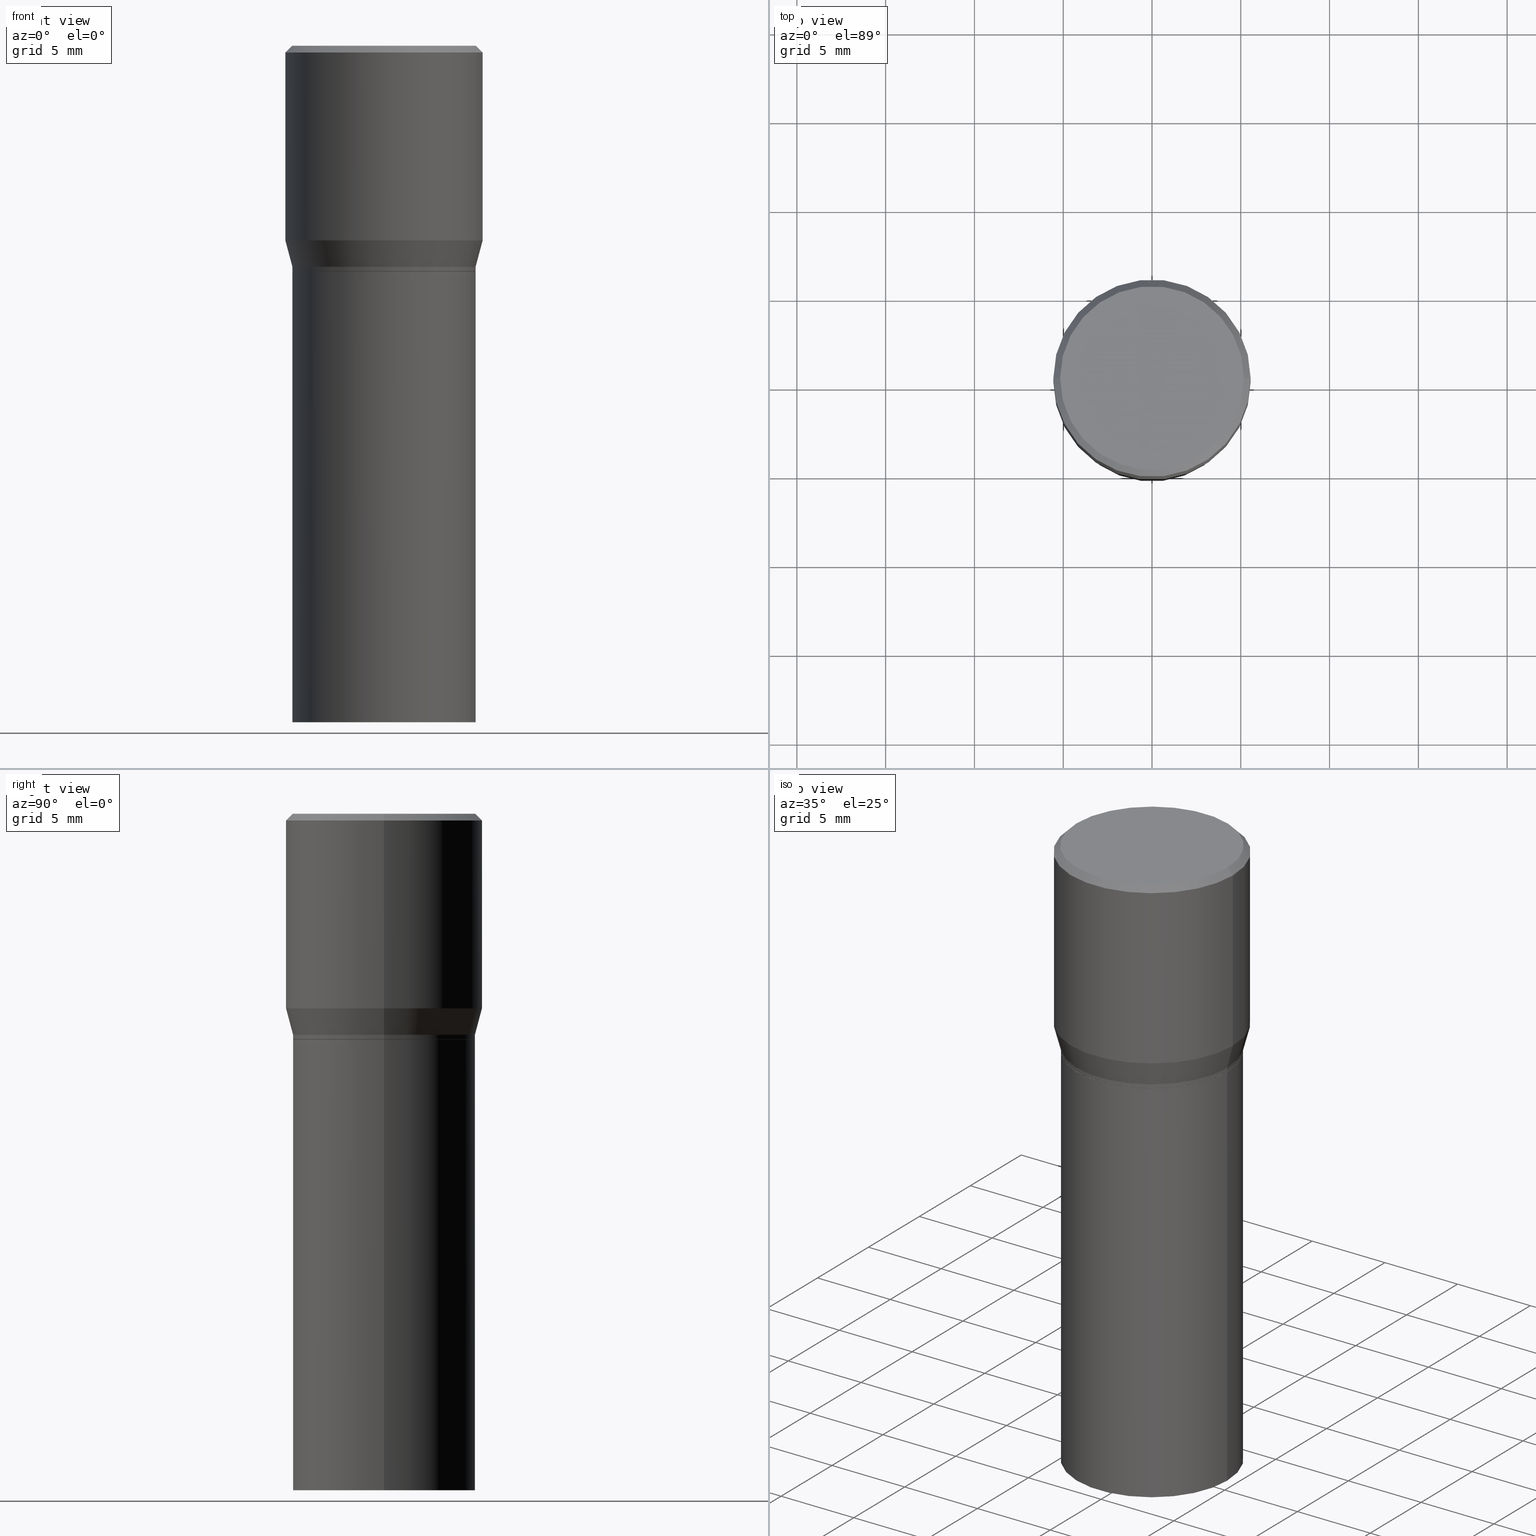
[diagram: canonical four-view strip — front | top / right | iso, engineering-drawing reading convention]
A machine part, canonical four-view strip (front | top / right | iso — engineering-drawing reading convention). The complete STEP part file that produces these views, byte-faithful:
ISO-10303-21;
HEADER;
FILE_DESCRIPTION (( 'STEP AP203' ),
    '1' );
FILE_NAME ('30796.STEP',
    '2024-03-13T16:20:47',
    ( '' ),
    ( '' ),
    'SwSTEP 2.0',
    'SolidWorks 2023',
    '' );
FILE_SCHEMA (( 'CONFIG_CONTROL_DESIGN' ));
ENDSEC;

DATA;
#1 = LINE ( 'NONE', #244, #153 ) ;
#2 = APPROVAL_DATE_TIME ( #459, #432 ) ;
#3 = EDGE_CURVE ( 'NONE', #121, #364, #36, .T. ) ;
#4 = ORIENTED_EDGE ( 'NONE', *, *, #326, .T. ) ;
#5 = DIRECTION ( 'NONE',  ( 1.000000000000000000, -6.982962677686266711E-15, 0.000000000000000000 ) ) ;
#6 = CIRCLE ( 'NONE', #98, 0.2037499999999999867 ) ;
#7 = ORIENTED_EDGE ( 'NONE', *, *, #449, .F. ) ;
#8 = SHAPE_DEFINITION_REPRESENTATION ( #379, #350 ) ;
#9 = DIRECTION ( 'NONE',  ( 1.000000000000000000, -6.982962677686266711E-15, 4.875065411617369217E-29 ) ) ;
#10 = EDGE_LOOP ( 'NONE', ( #460, #282, #119, #116 ) ) ;
#11 = PERSON_AND_ORGANIZATION_ROLE ( 'classification_officer' ) ;
#12 = LINE ( 'NONE', #150, #101 ) ;
#13 = ORIENTED_EDGE ( 'NONE', *, *, #173, .F. ) ;
#14 = DIRECTION ( 'NONE',  ( 1.000000000000000000, -6.982962677686266711E-15, 4.876176775795935232E-29 ) ) ;
#15 = CIRCLE ( 'NONE', #332, 0.2031000000000000028 ) ;
#16 = EDGE_CURVE ( 'NONE', #318, #358, #466, .T. ) ;
#17 = ORIENTED_EDGE ( 'NONE', *, *, #423, .F. ) ;
#18 = CIRCLE ( 'NONE', #320, 0.2026000000000000023 ) ;
#19 = CYLINDRICAL_SURFACE ( 'NONE', #278, 0.2031000000000000028 ) ;
#20 = ORIENTED_EDGE ( 'NONE', *, *, #132, .F. ) ;
#21 = UNCERTAINTY_MEASURE_WITH_UNIT (LENGTH_MEASURE( 1.000000000000000082E-05 ), #72, 'distance_accuracy_value', 'NONE');
#22 = DIRECTION ( 'NONE',  ( -2.445468806185136877E-29, 3.491481338843145188E-15, 1.000000000000000000 ) ) ;
#23 = EDGE_LOOP ( 'NONE', ( #122, #215, #161, #13 ) ) ;
#24 = CARTESIAN_POINT ( 'NONE',  ( 0.2031000000000000028, -1.418239719838080775E-15, 9.903515031641546145E-30 ) ) ;
#25 = ORIENTED_EDGE ( 'NONE', *, *, #308, .F. ) ;
#26 = DIRECTION ( 'NONE',  ( -2.445468806185136597E-29, 3.491481338843145583E-15, 1.000000000000000000 ) ) ;
#27 = DIRECTION ( 'NONE',  ( 0.7071067811865715536, -2.468850131082509496E-15, 0.7071067811865232589 ) ) ;
#28 = FACE_OUTER_BOUND ( 'NONE', #405, .T. ) ;
#29 = DIRECTION ( 'NONE',  ( -2.438088387897960049E-29, 3.491481338843145188E-15, 1.000000000000000000 ) ) ;
#30 = ORIENTED_EDGE ( 'NONE', *, *, #141, .F. ) ;
#31 = DIRECTION ( 'NONE',  ( -0.7071067811865715536, 7.493145998870439357E-15, 0.7071067811865232589 ) ) ;
#32 = CALENDAR_DATE ( 2024, 13, 3 ) ;
#33 = EDGE_CURVE ( 'NONE', #151, #436, #355, .T. ) ;
#34 = DIRECTION ( 'NONE',  ( 1.000000000000000000, -6.982962677686266711E-15, 0.000000000000000000 ) ) ;
#35 = AXIS2_PLACEMENT_3D ( 'NONE', #206, #203, #275 ) ;
#36 = CIRCLE ( 'NONE', #139, 0.2037499999999999867 ) ;
#37 = DATE_AND_TIME ( #42, #464 ) ;
#38 = ADVANCED_FACE ( 'NONE', ( #265 ), #414, .T. ) ;
#39 = PLANE ( 'NONE',  #363 ) ;
#40 = ORIENTED_EDGE ( 'NONE', *, *, #208, .F. ) ;
#41 = DATE_AND_TIME ( #322, #90 ) ;
#42 = CALENDAR_DATE ( 2024, 13, 3 ) ;
#43 = DIRECTION ( 'NONE',  ( -2.445468806185136877E-29, 3.491481338843145188E-15, 1.000000000000000000 ) ) ;
#44 = VECTOR ( 'NONE', #91, 39.37007874015748854 ) ;
#45 = ORIENTED_EDGE ( 'NONE', *, *, #99, .T. ) ;
#46 = DATE_AND_TIME ( #410, #179 ) ;
#47 = DIRECTION ( 'NONE',  ( 1.000000000000000000, -6.982962677686266711E-15, 4.876176775795935793E-29 ) ) ;
#48 = PRODUCT_DEFINITION ( 'UNKNOWN', '', #106, #311 ) ;
#49 = ORIENTED_EDGE ( 'NONE', *, *, #247, .F. ) ;
#50 = DIRECTION ( 'NONE',  ( -2.445468806185136597E-29, 3.491481338843145583E-15, 1.000000000000000000 ) ) ;
#51 = ADVANCED_FACE ( 'NONE', ( #86 ), #73, .T. ) ;
#52 = ADVANCED_FACE ( 'NONE', ( #56 ), #303, .F. ) ;
#53 = ORIENTED_EDGE ( 'NONE', *, *, #194, .T. ) ;
#54 = CARTESIAN_POINT ( 'NONE',  ( 0.2031000000000000028, -3.163980389259653764E-15, -0.5000000000000001110 ) ) ;
#55 = MANIFOLD_SOLID_BREP ( 'Body-Move/Copy2[2]', #134 ) ;
#56 = FACE_OUTER_BOUND ( 'NONE', #110, .T. ) ;
#57 = CIRCLE ( 'NONE', #386, 0.2031000000000000028 ) ;
#58 = CC_DESIGN_APPROVAL ( #432, ( #48 ) ) ;
#59 = CARTESIAN_POINT ( 'NONE',  ( 1.222734403092568719E-29, -1.745740669421573186E-15, -0.5000000000000001110 ) ) ;
#60 = DIRECTION ( 'NONE',  ( 1.000000000000000000, -6.982962677686266711E-15, 4.876176775795935793E-29 ) ) ;
#61 = VERTEX_POINT ( 'NONE', #193 ) ;
#62 = ORIENTED_EDGE ( 'NONE', *, *, #208, .T. ) ;
#63 = DIRECTION ( 'NONE',  ( -2.445468806185136597E-29, 3.491481338843145583E-15, 1.000000000000000000 ) ) ;
#64 = VECTOR ( 'NONE', #448, 39.37007874015748143 ) ;
#65 = FACE_OUTER_BOUND ( 'NONE', #200, .T. ) ;
#66 = CARTESIAN_POINT ( 'NONE',  ( 0.2031000000000000028, -3.162234648590232655E-15, -0.4995000000000001661 ) ) ;
#67 = PERSON_AND_ORGANIZATION_ROLE ( 'creator' ) ;
#68 = EDGE_CURVE ( 'NONE', #148, #400, #300, .T. ) ;
#69 = VECTOR ( 'NONE', #289, 39.37007874015748143 ) ;
#70 = APPROVAL_ROLE ( '' ) ;
#71 = DIRECTION ( 'NONE',  ( -2.445468806185136597E-29, 3.491481338843145583E-15, 1.000000000000000000 ) ) ;
#72 =( CONVERSION_BASED_UNIT ( 'INCH', #310 ) LENGTH_UNIT ( ) NAMED_UNIT ( #444 ) );
#73 = CONICAL_SURFACE ( 'NONE', #413, 0.2026000000000000023, 0.7853981633974824739 ) ;
#74 = AXIS2_PLACEMENT_3D ( 'NONE', #377, #63, #198 ) ;
#75 = ORIENTED_EDGE ( 'NONE', *, *, #213, .T. ) ;
#76 = VERTEX_POINT ( 'NONE', #335 ) ;
#77 = DIRECTION ( 'NONE',  ( 2.438088387897960049E-29, -3.491481338843145188E-15, -1.000000000000000000 ) ) ;
#78 = ADVANCED_FACE ( 'NONE', ( #283 ), #107, .T. ) ;
#79 = EDGE_LOOP ( 'NONE', ( #124, #75, #82, #359 ) ) ;
#80 = PRODUCT_RELATED_PRODUCT_CATEGORY ( 'detail', '', ( #172 ) ) ;
#81 = CARTESIAN_POINT ( 'NONE',  ( -0.2031000000000000028, 1.443112296328763497E-15, -9.990357168307714203E-30 ) ) ;
#82 = ORIENTED_EDGE ( 'NONE', *, *, #429, .F. ) ;
#83 = CARTESIAN_POINT ( 'NONE',  ( -0.2187500000000000000, 1.475150865661223567E-15, -0.01499999999999999944 ) ) ;
#84 = ORIENTED_EDGE ( 'NONE', *, *, #210, .T. ) ;
#85 = CARTESIAN_POINT ( 'NONE',  ( 1.418239719838093003E-15, 0.2030999999999982819, -0.5000000000000007772 ) ) ;
#86 = FACE_OUTER_BOUND ( 'NONE', #220, .T. ) ;
#87 = DIRECTION ( 'NONE',  ( -2.445468806185136877E-29, 3.491481338843145188E-15, 1.000000000000000000 ) ) ;
#88 = ORIENTED_EDGE ( 'NONE', *, *, #245, .T. ) ;
#89 = CIRCLE ( 'NONE', #264, 0.2031000000000000583 ) ;
#90 = LOCAL_TIME ( 12, 20, 47.00000000000000000, #149 ) ;
#91 = DIRECTION ( 'NONE',  ( 0.2588190451025211836, 1.565188264969622559E-15, 0.9659258262890679791 ) ) ;
#92 = ADVANCED_FACE ( 'NONE', ( #120 ), #221, .F. ) ;
#93 = CARTESIAN_POINT ( 'NONE',  ( 0.000000000000000000, 0.000000000000000000, 0.000000000000000000 ) ) ;
#94 = CARTESIAN_POINT ( 'NONE',  ( 0.000000000000000000, 0.000000000000000000, 0.000000000000000000 ) ) ;
#95 = DIRECTION ( 'NONE',  ( -2.445468806185136597E-29, 3.491481338843145583E-15, 1.000000000000000000 ) ) ;
#96 = CARTESIAN_POINT ( 'NONE',  ( 1.055448208544146876E-29, -1.506900319041867721E-15, -0.4315934048615475138 ) ) ;
#97 = DIRECTION ( 'NONE',  ( 1.000000000000000000, -6.982962677686265922E-15, 0.000000000000000000 ) ) ;
#98 = AXIS2_PLACEMENT_3D ( 'NONE', #260, #323, #9 ) ;
#99 = EDGE_CURVE ( 'NONE', #61, #436, #157, .T. ) ;
#100 = DIRECTION ( 'NONE',  ( -2.445468806185136597E-29, 3.491481338843145583E-15, 1.000000000000000000 ) ) ;
#101 = VECTOR ( 'NONE', #285, 39.37007874015748143 ) ;
#102 = CARTESIAN_POINT ( 'NONE',  ( 0.2031000000000000028, -1.418239719838080775E-15, 9.903515031641546145E-30 ) ) ;
#103 = PERSON_AND_ORGANIZATION_ROLE ( 'design_owner' ) ;
#104 = CARTESIAN_POINT ( 'NONE',  ( 3.668203209277705088E-31, -5.237222008264718399E-17, -0.01499999999999999944 ) ) ;
#105 = APPROVAL_ROLE ( '' ) ;
#106 = PRODUCT_DEFINITION_FORMATION_WITH_SPECIFIED_SOURCE ( 'ANY', '', #172, .NOT_KNOWN. ) ;
#107 = CONICAL_SURFACE ( 'NONE', #372, 0.2187500000000000000, 0.7853981633974450594 ) ;
#108 = ORIENTED_EDGE ( 'NONE', *, *, #126, .F. ) ;
#109 = DIRECTION ( 'NONE',  ( 1.000000000000000000, -6.982962677686265922E-15, 0.000000000000000000 ) ) ;
#110 = EDGE_LOOP ( 'NONE', ( #158, #371 ) ) ;
#111 = CARTESIAN_POINT ( 'NONE',  ( -0.2187500000000000000, 1.554312234475219157E-15, -1.076017050993260622E-29 ) ) ;
#112 = VERTEX_POINT ( 'NONE', #446 ) ;
#113 = COORDINATED_UNIVERSAL_TIME_OFFSET ( 5, 0, .BEHIND. ) ;
#114 = CARTESIAN_POINT ( 'NONE',  ( 0.000000000000000000, 0.000000000000000000, 0.000000000000000000 ) ) ;
#115 = VECTOR ( 'NONE', #87, 39.37007874015748143 ) ;
#116 = ORIENTED_EDGE ( 'NONE', *, *, #16, .F. ) ;
#117 = ADVANCED_FACE ( 'NONE', ( #227 ), #39, .F. ) ;
#118 = DIRECTION ( 'NONE',  ( -0.2588190451025211836, 5.211531920934547886E-15, 0.9659258262890679791 ) ) ;
#119 = ORIENTED_EDGE ( 'NONE', *, *, #313, .T. ) ;
#120 = FACE_OUTER_BOUND ( 'NONE', #395, .T. ) ;
#121 = VERTEX_POINT ( 'NONE', #437 ) ;
#122 = ORIENTED_EDGE ( 'NONE', *, *, #213, .F. ) ;
#123 = CARTESIAN_POINT ( 'NONE',  ( 0.2031000000000000583, -3.129065575871222509E-15, -0.4900000000000001021 ) ) ;
#124 = ORIENTED_EDGE ( 'NONE', *, *, #308, .T. ) ;
#125 = AXIS2_PLACEMENT_3D ( 'NONE', #162, #345, #419 ) ;
#126 = EDGE_CURVE ( 'NONE', #318, #184, #399, .T. ) ;
#127 = DIRECTION ( 'NONE',  ( -2.445468806185136597E-29, 3.491481338843145583E-15, 1.000000000000000000 ) ) ;
#128 = DIRECTION ( 'NONE',  ( 1.000000000000000000, -6.982962677686266711E-15, 4.875065411617369217E-29 ) ) ;
#129 = CC_DESIGN_PERSON_AND_ORGANIZATION_ASSIGNMENT ( #352, #67, ( #106 ) ) ;
#130 = CARTESIAN_POINT ( 'NONE',  ( 3.668203209277705088E-31, -5.237222008264718399E-17, -0.01499999999999999944 ) ) ;
#131 = DIRECTION ( 'NONE',  ( -2.445468806185136597E-29, 3.491481338843145583E-15, 1.000000000000000000 ) ) ;
#132 = EDGE_CURVE ( 'NONE', #400, #398, #57, .T. ) ;
#133 = DIRECTION ( 'NONE',  ( -2.445468806185136597E-29, 3.491481338843145583E-15, 1.000000000000000000 ) ) ;
#134 = CLOSED_SHELL ( 'NONE', ( #392, #51, #376, #243, #163, #290, #38, #78, #92, #52, #302, #166 ) ) ;
#135 = DIRECTION ( 'NONE',  ( 1.000000000000000000, -6.982962677686265133E-15, 0.000000000000000000 ) ) ;
#136 = AXIS2_PLACEMENT_3D ( 'NONE', #114, #404, #14 ) ;
#137 = CC_DESIGN_SECURITY_CLASSIFICATION ( #382, ( #106 ) ) ;
#138 = CARTESIAN_POINT ( 'NONE',  ( 0.000000000000000000, 0.000000000000000000, 0.000000000000000000 ) ) ;
#139 = AXIS2_PLACEMENT_3D ( 'NONE', #409, #339, #128 ) ;
#140 = PERSON_AND_ORGANIZATION ( #205, #280 ) ;
#141 = EDGE_CURVE ( 'NONE', #364, #121, #6, .T. ) ;
#142 = CARTESIAN_POINT ( 'NONE',  ( -0.2031000000000000028, -2.048369042514382480E-15, -0.5000000000000001110 ) ) ;
#143 = ORIENTED_EDGE ( 'NONE', *, *, #361, .T. ) ;
#144 = CONICAL_SURFACE ( 'NONE', #125, 0.2026000000000000023, 0.7853981633974824739 ) ;
#145 = DIRECTION ( 'NONE',  ( 1.000000000000000000, -6.982962677686266711E-15, 0.000000000000000000 ) ) ;
#146 = ORIENTED_EDGE ( 'NONE', *, *, #449, .T. ) ;
#147 = CARTESIAN_POINT ( 'NONE',  ( -0.2187500000000000000, 4.741191543335144142E-17, -0.4315934048615475138 ) ) ;
#148 = VERTEX_POINT ( 'NONE', #330 ) ;
#149 = COORDINATED_UNIVERSAL_TIME_OFFSET ( 5, 0, .BEHIND. ) ;
#150 = CARTESIAN_POINT ( 'NONE',  ( 0.2187500000000000000, -1.553106157095169608E-15, -0.01499999999999999944 ) ) ;
#151 = VERTEX_POINT ( 'NONE', #54 ) ;
#152 = CARTESIAN_POINT ( 'NONE',  ( 1.221511668689476057E-29, -1.743994928752151682E-15, -0.4995000000000001661 ) ) ;
#153 = VECTOR ( 'NONE', #31, 39.37007874015748854 ) ;
#154 = AXIS2_PLACEMENT_3D ( 'NONE', #452, #127, #232 ) ;
#155 = EDGE_LOOP ( 'NONE', ( #445, #84, #40, #191 ) ) ;
#156 = APPROVAL_STATUS ( 'not_yet_approved' ) ;
#157 = LINE ( 'NONE', #81, #115 ) ;
#158 = ORIENTED_EDGE ( 'NONE', *, *, #326, .F. ) ;
#159 = APPROVAL_ROLE ( '' ) ;
#160 = CARTESIAN_POINT ( 'NONE',  ( 0.2031000000000000583, -3.129065575871222509E-15, -0.4900000000000001021 ) ) ;
#161 = ORIENTED_EDGE ( 'NONE', *, *, #257, .T. ) ;
#162 = CARTESIAN_POINT ( 'NONE',  ( 1.222734403092568719E-29, -1.745740669421573186E-15, -0.5000000000000001110 ) ) ;
#163 = ADVANCED_FACE ( 'NONE', ( #216 ), #212, .T. ) ;
#164 = APPROVAL_PERSON_ORGANIZATION ( #140, #432, #70 ) ;
#165 = DIRECTION ( 'NONE',  ( 1.000000000000000000, -6.982962677686268288E-15, 0.000000000000000000 ) ) ;
#166 = ADVANCED_FACE ( 'NONE', ( #408 ), #19, .T. ) ;
#167 = CARTESIAN_POINT ( 'NONE',  ( 1.222734403092568719E-29, -1.745740669421573186E-15, -0.5000000000000001110 ) ) ;
#168 = DIRECTION ( 'NONE',  ( 1.000000000000000000, -6.982962677686265922E-15, 0.000000000000000000 ) ) ;
#169 = CC_DESIGN_PERSON_AND_ORGANIZATION_ASSIGNMENT ( #242, #462, ( #48 ) ) ;
#170 = DIRECTION ( 'NONE',  ( -2.445468806185136597E-29, 3.491481338843145583E-15, 1.000000000000000000 ) ) ;
#171 = ORIENTED_EDGE ( 'NONE', *, *, #286, .T. ) ;
#172 = PRODUCT ( '30796', '30796', '', ( #209 ) ) ;
#173 = EDGE_CURVE ( 'NONE', #76, #189, #271, .T. ) ;
#174 = AXIS2_PLACEMENT_3D ( 'NONE', #259, #368, #183 ) ;
#175 = CC_DESIGN_APPROVAL ( #390, ( #382 ) ) ;
#176 = DIRECTION ( 'NONE',  ( 1.000000000000000000, 0.000000000000000000, 0.000000000000000000 ) ) ;
#177 = DIRECTION ( 'NONE',  ( 1.000000000000000000, -6.982962677686265922E-15, 0.000000000000000000 ) ) ;
#178 = CALENDAR_DATE ( 2024, 13, 3 ) ;
#179 = LOCAL_TIME ( 12, 20, 47.00000000000000000, #113 ) ;
#180 =( NAMED_UNIT ( * ) PLANE_ANGLE_UNIT ( ) SI_UNIT ( $, .RADIAN. ) );
#181 = COORDINATED_UNIVERSAL_TIME_OFFSET ( 5, 0, .BEHIND. ) ;
#182 = ORIENTED_EDGE ( 'NONE', *, *, #33, .T. ) ;
#183 = DIRECTION ( 'NONE',  ( 1.000000000000000000, -6.982962677686265922E-15, 0.000000000000000000 ) ) ;
#184 = VERTEX_POINT ( 'NONE', #147 ) ;
#185 = CIRCLE ( 'NONE', #239, 0.2187500000000000000 ) ;
#186 = LINE ( 'NONE', #111, #451 ) ;
#187 = EDGE_LOOP ( 'NONE', ( #434, #327 ) ) ;
#188 = LINE ( 'NONE', #83, #69 ) ;
#189 = VERTEX_POINT ( 'NONE', #281 ) ;
#190 = FACE_OUTER_BOUND ( 'NONE', #79, .T. ) ;
#191 = ORIENTED_EDGE ( 'NONE', *, *, #313, .F. ) ;
#192 = DIRECTION ( 'NONE',  ( -1.000000000000000000, 6.982962677686265922E-15, -4.876176775795935793E-29 ) ) ;
#193 = CARTESIAN_POINT ( 'NONE',  ( -0.2031000000000000028, -2.048369042514382480E-15, -1.500000000000000222 ) ) ;
#194 = EDGE_CURVE ( 'NONE', #121, #76, #188, .T. ) ;
#195 = DIRECTION ( 'NONE',  ( 1.000000000000000000, -6.982962677686266711E-15, 4.876176775795935793E-29 ) ) ;
#196 = CARTESIAN_POINT ( 'NONE',  ( 0.2031000000000000028, -6.655461728102798952E-15, -1.500000000000000222 ) ) ;
#197 = DIRECTION ( 'NONE',  ( -2.438088387897960049E-29, 3.491481338843145188E-15, 1.000000000000000000 ) ) ;
#198 = DIRECTION ( 'NONE',  ( 1.000000000000000000, -6.982962677686266711E-15, 0.000000000000000000 ) ) ;
#199 = CIRCLE ( 'NONE', #35, 0.2031000000000000028 ) ;
#200 = EDGE_LOOP ( 'NONE', ( #337, #324, #88, #284 ) ) ;
#201 = FACE_OUTER_BOUND ( 'NONE', #328, .T. ) ;
#202 = FACE_OUTER_BOUND ( 'NONE', #187, .T. ) ;
#203 = DIRECTION ( 'NONE',  ( -2.445468806185136597E-29, 3.491481338843145583E-15, 1.000000000000000000 ) ) ;
#204 = CIRCLE ( 'NONE', #353, 0.2026000000000000023 ) ;
#205 = PERSON ( 'UNSPECIFIED', 'UNSPECIFIED', 'UNSPECIFIED', ('UNSPECIFIED'), ('UNSPECIFIED'), ('UNSPECIFIED') ) ;
#206 = CARTESIAN_POINT ( 'NONE',  ( 3.668203209277704895E-29, -5.237222008264718177E-15, -1.500000000000000222 ) ) ;
#207 = DATE_AND_TIME ( #178, #229 ) ;
#208 = EDGE_CURVE ( 'NONE', #358, #318, #89, .T. ) ;
#209 = MECHANICAL_CONTEXT ( 'NONE', #246, 'mechanical' ) ;
#210 = EDGE_CURVE ( 'NONE', #398, #318, #325, .T. ) ;
#211 = AXIS2_PLACEMENT_3D ( 'NONE', #167, #197, #342 ) ;
#212 = CONICAL_SURFACE ( 'NONE', #174, 0.2031000000000000583, 0.2617993877991499074 ) ;
#213 = EDGE_CURVE ( 'NONE', #184, #76, #186, .T. ) ;
#214 = ORIENTED_EDGE ( 'NONE', *, *, #245, .F. ) ;
#215 = ORIENTED_EDGE ( 'NONE', *, *, #247, .T. ) ;
#216 = FACE_OUTER_BOUND ( 'NONE', #217, .T. ) ;
#217 = EDGE_LOOP ( 'NONE', ( #62, #447, #25, #294 ) ) ;
#218 = PERSON_AND_ORGANIZATION_ROLE ( 'design_supplier' ) ;
#219 = DIRECTION ( 'NONE',  ( -1.000000000000000000, 6.982962677686265922E-15, -4.876176775795935793E-29 ) ) ;
#220 = EDGE_LOOP ( 'NONE', ( #4, #146, #20, #223 ) ) ;
#221 = PLANE ( 'NONE',  #309 ) ;
#222 = CC_DESIGN_PERSON_AND_ORGANIZATION_ASSIGNMENT ( #439, #218, ( #106 ) ) ;
#223 = ORIENTED_EDGE ( 'NONE', *, *, #68, .F. ) ;
#224 = CARTESIAN_POINT ( 'NONE',  ( -0.2031000000000000583, -2.677135597043777931E-16, -0.4900000000000001021 ) ) ;
#225 = DIRECTION ( 'NONE',  ( 1.000000000000000000, -6.982962677686268288E-15, 0.000000000000000000 ) ) ;
#226 = PERSON_AND_ORGANIZATION ( #205, #280 ) ;
#227 = FACE_OUTER_BOUND ( 'NONE', #291, .T. ) ;
#228 = AXIS2_PLACEMENT_3D ( 'NONE', #454, #100, #135 ) ;
#229 = LOCAL_TIME ( 12, 20, 47.00000000000000000, #388 ) ;
#230 = AXIS2_PLACEMENT_3D ( 'NONE', #450, #420, #97 ) ;
#231 = FACE_OUTER_BOUND ( 'NONE', #155, .T. ) ;
#232 = DIRECTION ( 'NONE',  ( 1.000000000000000000, -6.982962677686264344E-15, 0.000000000000000000 ) ) ;
#233 = DIRECTION ( 'NONE',  ( 1.000000000000000000, -6.982962677686265922E-15, 0.000000000000000000 ) ) ;
#234 = DIRECTION ( 'NONE',  ( -2.445468806185136597E-29, 3.491481338843145583E-15, 1.000000000000000000 ) ) ;
#235 = AXIS2_PLACEMENT_3D ( 'NONE', #381, #29, #416 ) ;
#236 = ORIENTED_EDGE ( 'NONE', *, *, #16, .T. ) ;
#237 = LINE ( 'NONE', #123, #44 ) ;
#238 = DIRECTION ( 'NONE',  ( -2.445468806185136597E-29, 3.491481338843145583E-15, 1.000000000000000000 ) ) ;
#239 = AXIS2_PLACEMENT_3D ( 'NONE', #96, #170, #412 ) ;
#240 = APPROVAL_PERSON_ORGANIZATION ( #431, #415, #105 ) ;
#241 = EDGE_CURVE ( 'NONE', #364, #189, #12, .T. ) ;
#242 = PERSON_AND_ORGANIZATION ( #205, #280 ) ;
#243 = ADVANCED_FACE ( 'NONE', ( #190 ), #440, .T. ) ;
#244 = CARTESIAN_POINT ( 'NONE',  ( -0.2026000000000000023, -3.061810867716101928E-16, -0.5000000000000001110 ) ) ;
#245 = EDGE_CURVE ( 'NONE', #331, #151, #336, .T. ) ;
#246 = APPLICATION_CONTEXT ( 'configuration controlled 3d designs of mechanical parts and assemblies' ) ;
#247 = EDGE_CURVE ( 'NONE', #184, #112, #307, .T. ) ;
#248 = EDGE_LOOP ( 'NONE', ( #30, #438, #287, #261 ) ) ;
#249 = CARTESIAN_POINT ( 'NONE',  ( -0.2031000000000000028, 1.443112296328763497E-15, -9.990357168307714203E-30 ) ) ;
#250 = ORIENTED_EDGE ( 'NONE', *, *, #241, .F. ) ;
#251 = DIRECTION ( 'NONE',  ( -2.445468806185136877E-29, 3.491481338843145188E-15, 1.000000000000000000 ) ) ;
#252 = VERTEX_POINT ( 'NONE', #306 ) ;
#253 = APPROVAL_DATE_TIME ( #46, #390 ) ;
#254 = CONICAL_SURFACE ( 'NONE', #298, 0.2187500000000000000, 0.7853981633974450594 ) ;
#255 = CC_DESIGN_APPROVAL ( #415, ( #106 ) ) ;
#256 = CARTESIAN_POINT ( 'NONE',  ( 3.668203209277705088E-31, -5.237222008264718399E-17, -0.01499999999999999944 ) ) ;
#257 = EDGE_CURVE ( 'NONE', #112, #189, #383, .T. ) ;
#258 = ORIENTED_EDGE ( 'NONE', *, *, #141, .T. ) ;
#259 = CARTESIAN_POINT ( 'NONE',  ( 1.198279715030717173E-29, -1.710825856033141537E-15, -0.4900000000000001021 ) ) ;
#260 = CARTESIAN_POINT ( 'NONE',  ( -2.592568563193567003E-45, 3.701500806376036554E-31, 1.060151966214568974E-16 ) ) ;
#261 = ORIENTED_EDGE ( 'NONE', *, *, #194, .F. ) ;
#262 = PERSON_AND_ORGANIZATION ( #205, #280 ) ;
#263 = DIRECTION ( 'NONE',  ( 2.445468806185136597E-29, -3.491481338843145583E-15, -1.000000000000000000 ) ) ;
#264 = AXIS2_PLACEMENT_3D ( 'NONE', #435, #370, #109 ) ;
#265 = FACE_OUTER_BOUND ( 'NONE', #23, .T. ) ;
#266 = CARTESIAN_POINT ( 'NONE',  ( -0.2031000000000000028, -3.008826324233883330E-16, -0.4995000000000001661 ) ) ;
#267 = CARTESIAN_POINT ( 'NONE',  ( 1.222734403092568719E-29, -1.745740669421573186E-15, -0.5000000000000001110 ) ) ;
#268 = PLANE ( 'NONE',  #235 ) ;
#269 = EDGE_LOOP ( 'NONE', ( #250, #296, #53, #279 ) ) ;
#270 = CARTESIAN_POINT ( 'NONE',  ( 0.2037499999999999867, -1.475466312070559275E-15, 1.060151966214670170E-16 ) ) ;
#271 = CIRCLE ( 'NONE', #314, 0.2187500000000000000 ) ;
#272 = CIRCLE ( 'NONE', #74, 0.2031000000000000028 ) ;
#273 = DIRECTION ( 'NONE',  ( -2.445468806185136597E-29, 3.491481338843145583E-15, 1.000000000000000000 ) ) ;
#274 = CARTESIAN_POINT ( 'NONE',  ( 0.000000000000000000, 0.000000000000000000, 0.000000000000000000 ) ) ;
#275 = DIRECTION ( 'NONE',  ( 1.000000000000000000, -6.982962677686264344E-15, 0.000000000000000000 ) ) ;
#276 = APPROVAL_STATUS ( 'not_yet_approved' ) ;
#277 = DATE_TIME_ROLE ( 'creation_date' ) ;
#278 = AXIS2_PLACEMENT_3D ( 'NONE', #319, #407, #47 ) ;
#279 = ORIENTED_EDGE ( 'NONE', *, *, #173, .T. ) ;
#280 = ORGANIZATION ( 'UNSPECIFIED', 'UNSPECIFIED', '' ) ;
#281 = CARTESIAN_POINT ( 'NONE',  ( 0.2187500000000000000, -1.579895305826517922E-15, -0.01499999999999999944 ) ) ;
#282 = ORIENTED_EDGE ( 'NONE', *, *, #423, .T. ) ;
#283 = FACE_OUTER_BOUND ( 'NONE', #269, .T. ) ;
#284 = ORIENTED_EDGE ( 'NONE', *, *, #461, .F. ) ;
#285 = DIRECTION ( 'NONE',  ( 0.7071067811865452413, -7.319954787623248157E-15, -0.7071067811865497932 ) ) ;
#286 = EDGE_CURVE ( 'NONE', #252, #148, #18, .T. ) ;
#287 = ORIENTED_EDGE ( 'NONE', *, *, #429, .T. ) ;
#288 = AXIS2_PLACEMENT_3D ( 'NONE', #94, #273, #195 ) ;
#289 = DIRECTION ( 'NONE',  ( -0.7071067811865452413, 2.468850131082233000E-15, -0.7071067811865497932 ) ) ;
#290 = ADVANCED_FACE ( 'NONE', ( #28 ), #380, .T. ) ;
#291 = EDGE_LOOP ( 'NONE', ( #182, #403 ) ) ;
#292 = CC_DESIGN_DATE_AND_TIME_ASSIGNMENT ( #207, #277, ( #48 ) ) ;
#293 = CARTESIAN_POINT ( 'NONE',  ( 1.422778645578576487E-15, 0.2037499999999999867, -6.583817244785623957E-16 ) ) ;
#294 = ORIENTED_EDGE ( 'NONE', *, *, #361, .F. ) ;
#295 = DIRECTION ( 'NONE',  ( 1.000000000000000000, -6.982962677686268288E-15, 0.000000000000000000 ) ) ;
#296 = ORIENTED_EDGE ( 'NONE', *, *, #3, .F. ) ;
#297 = FACE_OUTER_BOUND ( 'NONE', #248, .T. ) ;
#298 = AXIS2_PLACEMENT_3D ( 'NONE', #130, #263, #301 ) ;
#299 = LOCAL_TIME ( 12, 20, 47.00000000000000000, #181 ) ;
#300 = LINE ( 'NONE', #453, #334 ) ;
#301 = DIRECTION ( 'NONE',  ( -1.000000000000000000, 6.982962677686266711E-15, 0.000000000000000000 ) ) ;
#302 = ADVANCED_FACE ( 'NONE', ( #201 ), #144, .T. ) ;
#303 = PLANE ( 'NONE',  #211 ) ;
#304 = CC_DESIGN_PERSON_AND_ORGANIZATION_ASSIGNMENT ( #226, #11, ( #382 ) ) ;
#305 = DIRECTION ( 'NONE',  ( -2.445468806185136877E-29, 3.491481338843145188E-15, 1.000000000000000000 ) ) ;
#306 = CARTESIAN_POINT ( 'NONE',  ( -0.2026000000000000023, -3.035318595974993861E-16, -0.5000000000000001110 ) ) ;
#307 = CIRCLE ( 'NONE', #228, 0.2187500000000000000 ) ;
#308 = EDGE_CURVE ( 'NONE', #112, #184, #185, .T. ) ;
#309 = AXIS2_PLACEMENT_3D ( 'NONE', #293, #77, #192 ) ;
#310 = LENGTH_MEASURE_WITH_UNIT ( LENGTH_MEASURE( 0.02539999999999999897 ), #312 );
#311 = DESIGN_CONTEXT ( 'detailed design', #406, 'design' ) ;
#312 =( LENGTH_UNIT ( ) NAMED_UNIT ( * ) SI_UNIT ( $, .METRE. ) );
#313 = EDGE_CURVE ( 'NONE', #400, #358, #456, .T. ) ;
#314 = AXIS2_PLACEMENT_3D ( 'NONE', #256, #50, #5 ) ;
#315 = DIRECTION ( 'NONE',  ( 0.000000000000000000, 0.000000000000000000, 1.000000000000000000 ) ) ;
#316 = APPROVAL_DATE_TIME ( #37, #415 ) ;
#317 = PERSON_AND_ORGANIZATION ( #205, #280 ) ;
#318 = VERTEX_POINT ( 'NONE', #373 ) ;
#319 = CARTESIAN_POINT ( 'NONE',  ( 0.000000000000000000, 0.000000000000000000, 0.000000000000000000 ) ) ;
#320 = AXIS2_PLACEMENT_3D ( 'NONE', #338, #26, #295 ) ;
#321 = ORIENTED_EDGE ( 'NONE', *, *, #3, .T. ) ;
#322 = CALENDAR_DATE ( 2024, 13, 3 ) ;
#323 = DIRECTION ( 'NONE',  ( -2.445468806185136597E-29, 3.491481338843145583E-15, 1.000000000000000000 ) ) ;
#324 = ORIENTED_EDGE ( 'NONE', *, *, #430, .T. ) ;
#325 = LINE ( 'NONE', #249, #421 ) ;
#326 = EDGE_CURVE ( 'NONE', #148, #252, #204, .T. ) ;
#327 = ORIENTED_EDGE ( 'NONE', *, *, #430, .F. ) ;
#328 = EDGE_LOOP ( 'NONE', ( #7, #171, #367, #17 ) ) ;
#329 = ADVANCED_FACE ( 'NONE', ( #65 ), #344, .T. ) ;
#330 = CARTESIAN_POINT ( 'NONE',  ( 0.2026000000000000023, -3.160488907920811151E-15, -0.5000000000000001110 ) ) ;
#331 = VERTEX_POINT ( 'NONE', #196 ) ;
#332 = AXIS2_PLACEMENT_3D ( 'NONE', #351, #357, #177 ) ;
#333 = DIRECTION ( 'NONE',  ( 2.445468806185136597E-29, -3.491481338843145583E-15, -1.000000000000000000 ) ) ;
#334 = VECTOR ( 'NONE', #27, 39.37007874015748854 ) ;
#335 = CARTESIAN_POINT ( 'NONE',  ( -0.2187500000000000000, 7.746759649129616577E-16, -0.01499999999999999944 ) ) ;
#336 = LINE ( 'NONE', #102, #64 ) ;
#337 = ORIENTED_EDGE ( 'NONE', *, *, #99, .F. ) ;
#338 = CARTESIAN_POINT ( 'NONE',  ( 1.222734403092568719E-29, -1.745740669421573186E-15, -0.5000000000000001110 ) ) ;
#339 = DIRECTION ( 'NONE',  ( -2.445468806185136597E-29, 3.491481338843145583E-15, 1.000000000000000000 ) ) ;
#340 = CIRCLE ( 'NONE', #402, 0.2187500000000000000 ) ;
#341 = CARTESIAN_POINT ( 'NONE',  ( 1.198279715030717173E-29, -1.710825856033141537E-15, -0.4900000000000001021 ) ) ;
#342 = DIRECTION ( 'NONE',  ( 1.000000000000000000, -6.982962677686265922E-15, 4.876176775795935793E-29 ) ) ;
#343 = CLOSED_SHELL ( 'NONE', ( #465, #418, #329, #117 ) ) ;
#344 = CYLINDRICAL_SURFACE ( 'NONE', #288, 0.2031000000000000028 ) ;
#345 = DIRECTION ( 'NONE',  ( -2.445468806185136597E-29, 3.491481338843145583E-15, 1.000000000000000000 ) ) ;
#346 = CYLINDRICAL_SURFACE ( 'NONE', #457, 0.2031000000000000028 ) ;
#347 = VECTOR ( 'NONE', #305, 39.37007874015748143 ) ;
#348 = MANIFOLD_SOLID_BREP ( 'Body-Move/Copy2[1]', #343 ) ;
#349 = APPLICATION_PROTOCOL_DEFINITION ( 'international standard', 'config_control_design', 1994, #406 ) ;
#350 = ADVANCED_BREP_SHAPE_REPRESENTATION ( '30796', ( #348, #55, #426 ), #387 ) ;
#351 = CARTESIAN_POINT ( 'NONE',  ( 1.222734403092568719E-29, -1.745740669421573186E-15, -0.5000000000000001110 ) ) ;
#352 = PERSON_AND_ORGANIZATION ( #205, #280 ) ;
#353 = AXIS2_PLACEMENT_3D ( 'NONE', #59, #133, #165 ) ;
#354 = APPROVAL_PERSON_ORGANIZATION ( #262, #390, #159 ) ;
#355 = CIRCLE ( 'NONE', #394, 0.2031000000000000028 ) ;
#356 = AXIS2_PLACEMENT_3D ( 'NONE', #422, #234, #60 ) ;
#357 = DIRECTION ( 'NONE',  ( -2.445468806185136597E-29, 3.491481338843145583E-15, 1.000000000000000000 ) ) ;
#358 = VERTEX_POINT ( 'NONE', #160 ) ;
#359 = ORIENTED_EDGE ( 'NONE', *, *, #257, .F. ) ;
#360 = SECURITY_CLASSIFICATION_LEVEL ( 'unclassified' ) ;
#361 = EDGE_CURVE ( 'NONE', #358, #112, #237, .T. ) ;
#362 = DIRECTION ( 'NONE',  ( -1.000000000000000000, 6.982962677686266711E-15, 0.000000000000000000 ) ) ;
#363 = AXIS2_PLACEMENT_3D ( 'NONE', #85, #443, #219 ) ;
#364 = VERTEX_POINT ( 'NONE', #270 ) ;
#365 = DATE_TIME_ROLE ( 'classification_date' ) ;
#366 = DIRECTION ( 'NONE',  ( -2.445468806185136597E-29, 3.491481338843145583E-15, 1.000000000000000000 ) ) ;
#367 = ORIENTED_EDGE ( 'NONE', *, *, #68, .T. ) ;
#368 = DIRECTION ( 'NONE',  ( -2.445468806185136597E-29, 3.491481338843145583E-15, 1.000000000000000000 ) ) ;
#369 = ORIENTED_EDGE ( 'NONE', *, *, #396, .T. ) ;
#370 = DIRECTION ( 'NONE',  ( -2.445468806185136597E-29, 3.491481338843145583E-15, 1.000000000000000000 ) ) ;
#371 = ORIENTED_EDGE ( 'NONE', *, *, #286, .F. ) ;
#372 = AXIS2_PLACEMENT_3D ( 'NONE', #401, #333, #362 ) ;
#373 = CARTESIAN_POINT ( 'NONE',  ( -0.2031000000000000583, -1.101508221355132898E-16, -0.4900000000000001021 ) ) ;
#374 = CYLINDRICAL_SURFACE ( 'NONE', #356, 0.2031000000000000028 ) ;
#375 = CARTESIAN_POINT ( 'NONE',  ( 1.222734403092568719E-29, -1.745740669421573186E-15, -0.5000000000000001110 ) ) ;
#376 = ADVANCED_FACE ( 'NONE', ( #297 ), #254, .T. ) ;
#377 = CARTESIAN_POINT ( 'NONE',  ( 1.221511668689476057E-29, -1.743994928752151682E-15, -0.4995000000000001661 ) ) ;
#378 = DIRECTION ( 'NONE',  ( -2.445468806185136597E-29, 3.491481338843145583E-15, 1.000000000000000000 ) ) ;
#379 = PRODUCT_DEFINITION_SHAPE ( 'NONE', 'NONE',  #48 ) ;
#380 = CONICAL_SURFACE ( 'NONE', #441, 0.2031000000000000583, 0.2617993877991499074 ) ;
#381 = CARTESIAN_POINT ( 'NONE',  ( 3.576687321579069994E-29, -5.368277968210015545E-15, -1.500000000000000222 ) ) ;
#382 = SECURITY_CLASSIFICATION ( '', '', #360 ) ;
#383 = LINE ( 'NONE', #424, #411 ) ;
#384 = CC_DESIGN_DATE_AND_TIME_ASSIGNMENT ( #41, #365, ( #382 ) ) ;
#385 = APPROVAL_STATUS ( 'not_yet_approved' ) ;
#386 = AXIS2_PLACEMENT_3D ( 'NONE', #152, #366, #145 ) ;
#387 =( GEOMETRIC_REPRESENTATION_CONTEXT ( 3 ) GLOBAL_UNCERTAINTY_ASSIGNED_CONTEXT ( ( #21 ) ) GLOBAL_UNIT_ASSIGNED_CONTEXT ( ( #72, #180, #428 ) ) REPRESENTATION_CONTEXT ( 'NONE', 'WORKASPACE' ) );
#388 = COORDINATED_UNIVERSAL_TIME_OFFSET ( 5, 0, .BEHIND. ) ;
#389 = FACE_OUTER_BOUND ( 'NONE', #442, .T. ) ;
#390 = APPROVAL ( #156, 'UNSPECIFIED' ) ;
#391 = COORDINATED_UNIVERSAL_TIME_OFFSET ( 5, 0, .BEHIND. ) ;
#392 = ADVANCED_FACE ( 'NONE', ( #231 ), #374, .T. ) ;
#393 = CIRCLE ( 'NONE', #154, 0.2031000000000000028 ) ;
#394 = AXIS2_PLACEMENT_3D ( 'NONE', #267, #95, #233 ) ;
#395 = EDGE_LOOP ( 'NONE', ( #321, #258 ) ) ;
#396 = EDGE_CURVE ( 'NONE', #331, #61, #393, .T. ) ;
#397 = CC_DESIGN_PERSON_AND_ORGANIZATION_ASSIGNMENT ( #317, #103, ( #172 ) ) ;
#398 = VERTEX_POINT ( 'NONE', #266 ) ;
#399 = LINE ( 'NONE', #224, #463 ) ;
#400 = VERTEX_POINT ( 'NONE', #66 ) ;
#401 = CARTESIAN_POINT ( 'NONE',  ( 3.668203209277705088E-31, -5.237222008264718399E-17, -0.01499999999999999944 ) ) ;
#402 = AXIS2_PLACEMENT_3D ( 'NONE', #104, #238, #34 ) ;
#403 = ORIENTED_EDGE ( 'NONE', *, *, #461, .T. ) ;
#404 = DIRECTION ( 'NONE',  ( -2.445468806185136597E-29, 3.491481338843145583E-15, 1.000000000000000000 ) ) ;
#405 = EDGE_LOOP ( 'NONE', ( #108, #236, #143, #49 ) ) ;
#406 = APPLICATION_CONTEXT ( 'configuration controlled 3d designs of mechanical parts and assemblies' ) ;
#407 = DIRECTION ( 'NONE',  ( -2.445468806185136597E-29, 3.491481338843145583E-15, 1.000000000000000000 ) ) ;
#408 = FACE_OUTER_BOUND ( 'NONE', #10, .T. ) ;
#409 = CARTESIAN_POINT ( 'NONE',  ( -2.592568563193567003E-45, 3.701500806376036554E-31, 1.060151966214568974E-16 ) ) ;
#410 = CALENDAR_DATE ( 2024, 13, 3 ) ;
#411 = VECTOR ( 'NONE', #22, 39.37007874015748143 ) ;
#412 = DIRECTION ( 'NONE',  ( 1.000000000000000000, -6.982962677686265133E-15, 0.000000000000000000 ) ) ;
#413 = AXIS2_PLACEMENT_3D ( 'NONE', #375, #378, #225 ) ;
#414 = CYLINDRICAL_SURFACE ( 'NONE', #433, 0.2187500000000000000 ) ;
#415 = APPROVAL ( #276, 'UNSPECIFIED' ) ;
#416 = DIRECTION ( 'NONE',  ( 1.000000000000000000, -6.982962677686265922E-15, 4.876176775795935793E-29 ) ) ;
#417 = DIRECTION ( 'NONE',  ( 1.000000000000000000, -6.982962677686266711E-15, 4.876176775795935232E-29 ) ) ;
#418 = ADVANCED_FACE ( 'NONE', ( #202 ), #268, .F. ) ;
#419 = DIRECTION ( 'NONE',  ( 1.000000000000000000, -6.982962677686268288E-15, 0.000000000000000000 ) ) ;
#420 = DIRECTION ( 'NONE',  ( -2.445468806185136597E-29, 3.491481338843145583E-15, 1.000000000000000000 ) ) ;
#421 = VECTOR ( 'NONE', #43, 39.37007874015748143 ) ;
#422 = CARTESIAN_POINT ( 'NONE',  ( 0.000000000000000000, 0.000000000000000000, 0.000000000000000000 ) ) ;
#423 = EDGE_CURVE ( 'NONE', #398, #400, #272, .T. ) ;
#424 = CARTESIAN_POINT ( 'NONE',  ( 0.2187500000000000000, -1.527523085743870843E-15, 1.066663669705360885E-29 ) ) ;
#425 = DIRECTION ( 'NONE',  ( 1.000000000000000000, -6.982962677686266711E-15, 4.876176775795935793E-29 ) ) ;
#426 = AXIS2_PLACEMENT_3D ( 'NONE', #274, #315, #176 ) ;
#427 = APPLICATION_PROTOCOL_DEFINITION ( 'international standard', 'config_control_design', 1994, #246 ) ;
#428 =( NAMED_UNIT ( * ) SI_UNIT ( $, .STERADIAN. ) SOLID_ANGLE_UNIT ( ) );
#429 = EDGE_CURVE ( 'NONE', #189, #76, #340, .T. ) ;
#430 = EDGE_CURVE ( 'NONE', #61, #331, #199, .T. ) ;
#431 = PERSON_AND_ORGANIZATION ( #205, #280 ) ;
#432 = APPROVAL ( #385, 'UNSPECIFIED' ) ;
#433 = AXIS2_PLACEMENT_3D ( 'NONE', #93, #131, #417 ) ;
#434 = ORIENTED_EDGE ( 'NONE', *, *, #396, .F. ) ;
#435 = CARTESIAN_POINT ( 'NONE',  ( 1.198279715030717173E-29, -1.710825856033141537E-15, -0.4900000000000001021 ) ) ;
#436 = VERTEX_POINT ( 'NONE', #142 ) ;
#437 = CARTESIAN_POINT ( 'NONE',  ( -0.2037499999999999867, 1.448964755619900421E-15, 1.060151966214468518E-16 ) ) ;
#438 = ORIENTED_EDGE ( 'NONE', *, *, #241, .T. ) ;
#439 = PERSON_AND_ORGANIZATION ( #205, #280 ) ;
#440 = CYLINDRICAL_SURFACE ( 'NONE', #136, 0.2187500000000000000 ) ;
#441 = AXIS2_PLACEMENT_3D ( 'NONE', #341, #458, #168 ) ;
#442 = EDGE_LOOP ( 'NONE', ( #369, #45, #455, #214 ) ) ;
#443 = DIRECTION ( 'NONE',  ( 2.438088387897960049E-29, -3.491481338843145188E-15, -1.000000000000000000 ) ) ;
#444 = DIMENSIONAL_EXPONENTS ( 1.000000000000000000, 0.000000000000000000, 0.000000000000000000, 0.000000000000000000, 0.000000000000000000, 0.000000000000000000, 0.000000000000000000 ) ;
#445 = ORIENTED_EDGE ( 'NONE', *, *, #132, .T. ) ;
#446 = CARTESIAN_POINT ( 'NONE',  ( 0.2187500000000000000, -3.034423404785738170E-15, -0.4315934048615475138 ) ) ;
#447 = ORIENTED_EDGE ( 'NONE', *, *, #126, .T. ) ;
#448 = DIRECTION ( 'NONE',  ( -2.445468806185136877E-29, 3.491481338843145188E-15, 1.000000000000000000 ) ) ;
#449 = EDGE_CURVE ( 'NONE', #252, #398, #1, .T. ) ;
#450 = CARTESIAN_POINT ( 'NONE',  ( 1.198279715030717173E-29, -1.710825856033141537E-15, -0.4900000000000001021 ) ) ;
#451 = VECTOR ( 'NONE', #251, 39.37007874015748143 ) ;
#452 = CARTESIAN_POINT ( 'NONE',  ( 3.668203209277704895E-29, -5.237222008264718177E-15, -1.500000000000000222 ) ) ;
#453 = CARTESIAN_POINT ( 'NONE',  ( 0.2026000000000000023, -3.160488907920811151E-15, -0.5000000000000001110 ) ) ;
#454 = CARTESIAN_POINT ( 'NONE',  ( 1.055448208544146876E-29, -1.506900319041867721E-15, -0.4315934048615475138 ) ) ;
#455 = ORIENTED_EDGE ( 'NONE', *, *, #33, .F. ) ;
#456 = LINE ( 'NONE', #24, #347 ) ;
#457 = AXIS2_PLACEMENT_3D ( 'NONE', #138, #71, #425 ) ;
#458 = DIRECTION ( 'NONE',  ( -2.445468806185136597E-29, 3.491481338843145583E-15, 1.000000000000000000 ) ) ;
#459 = DATE_AND_TIME ( #32, #299 ) ;
#460 = ORIENTED_EDGE ( 'NONE', *, *, #210, .F. ) ;
#461 = EDGE_CURVE ( 'NONE', #436, #151, #15, .T. ) ;
#462 = PERSON_AND_ORGANIZATION_ROLE ( 'creator' ) ;
#463 = VECTOR ( 'NONE', #118, 39.37007874015748854 ) ;
#464 = LOCAL_TIME ( 12, 20, 47.00000000000000000, #391 ) ;
#465 = ADVANCED_FACE ( 'NONE', ( #389 ), #346, .T. ) ;
#466 = CIRCLE ( 'NONE', #230, 0.2031000000000000583 ) ;
ENDSEC;
END-ISO-10303-21;
